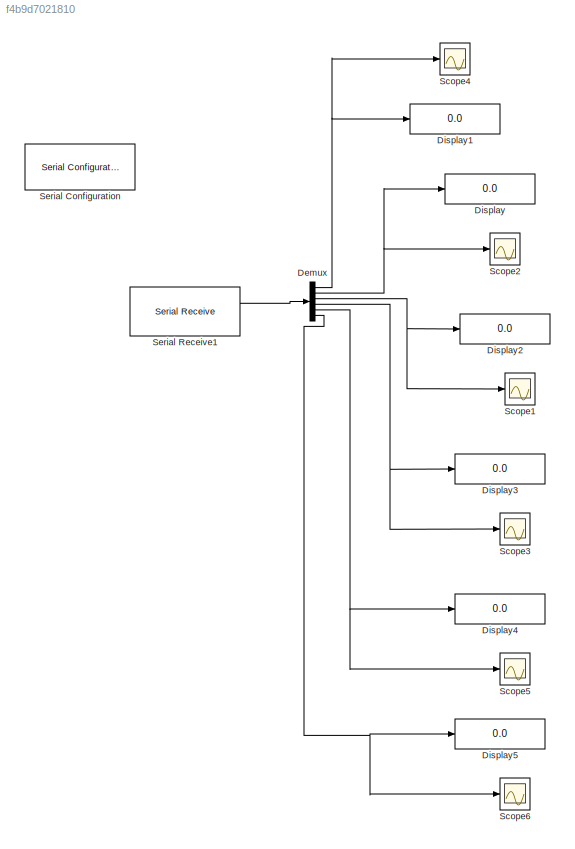
MODEL slx_f4b9d7021810
KIND model
CONFIG AbsTol = auto
CONFIG FixedStep = 0.0001
CONFIG MaxStep = auto
CONFIG MinStep = auto
CONFIG RelTol = 1e-3
CONFIG SampleTimeConstraint = Unconstrained
CONFIG Solver = ode3
CONFIG SolverMode = Auto
CONFIG SolverName = ode3
CONFIG StartTime = 0.0
CONFIG StopTime = inf
BLOCK [Demux] Demux
  DisplayOption = bar
  Outputs = 6
  Ports = [1, 6]
BLOCK [Display] Display
  Decimation = 1
  Ports = [1]
BLOCK [Display] Display1
  Decimation = 1
  Ports = [1]
BLOCK [Display] Display2
  Decimation = 1
  Ports = [1]
BLOCK [Display] Display3
  Decimation = 1
  Ports = [1]
BLOCK [Display] Display4
  Decimation = 1
  Ports = [1]
BLOCK [Display] Display5
  Decimation = 1
  Ports = [1]
BLOCK [Scope] Scope1
  Floating = off
  MaxDataPoints = 500000
  NumInputPorts = 1
  Ports = [1]
  SaveName = ScopeData1
  TimeRange = 0.2
  YMax = 11
  YMin = -1
BLOCK [Scope] Scope2
  Floating = off
  MaxDataPoints = 5000000
  NumInputPorts = 1
  Ports = [1]
  SaveName = ScopeData2
  TimeRange = 0.2
  YMax = 11
  YMin = -1
BLOCK [Scope] Scope3
  Floating = off
  MaxDataPoints = 5000000
  NumInputPorts = 1
  Ports = [1]
  TimeRange = 0.2
  YMax = 11
  YMin = -1
BLOCK [Scope] Scope4
  Floating = off
  MaxDataPoints = 500000
  NumInputPorts = 1
  Ports = [1]
  SaveName = ScopeData3
  TimeRange = 0.2
  YMax = 11
  YMin = -1
BLOCK [Scope] Scope5
  Floating = off
  MaxDataPoints = 5000000
  NumInputPorts = 1
  Ports = [1]
  SaveName = ScopeData4
  TimeRange = 0.2
  YMax = 11
  YMin = -1
BLOCK [Scope] Scope6
  Floating = off
  MaxDataPoints = 5000000
  NumInputPorts = 1
  Ports = [1]
  SaveName = ScopeData5
  TimeRange = 0.2
  YMax = 11
  YMin = -1
BLOCK [Reference] Serial Configuration  REF=instrumentlib/Serial Configuration
  BaudRate = 460800
  ByteOrder = BigEndian
  ComPort = COM3
  ComPortMenu = COM3
  DataBits = 8
  FlowControl = none
  ObjConstructor = serial('COM3');
  Parity = none
  Ports = []
  Priority = -200000
  SourceBlock = instrumentlib/Serial Configuration
  SourceType = Serial Configuration
  StopBits = 1
  Timeout = 10
BLOCK [Reference] Serial Receive1  REF=instrumentlib/Serial Receive
  ActionDataUnavailable = Output last received value
  ComPort = COM3
  ComPortMenu = COM3
  CustomValue = 0
  DataSize = [6  1]
  DataType = single
  EnableBlockingMode = off
  ObjConstructor = serial('COM3');
  Ports = [0, 2]
  SampleTime = 0.0001
  SourceBlock = instrumentlib/Serial Receive
  SourceType = Serial Receive
  Terminator = <none>
NET Demux:1 -> Display1:1, Scope4:1
NET Demux:2 -> Display:1, Scope2:1
NET Demux:3 -> Display2:1, Scope1:1
NET Demux:4 -> Display3:1, Scope3:1
NET Demux:5 -> Display4:1, Scope5:1
NET Demux:6 -> Display5:1, Scope6:1
LINE Serial Receive1:1 -> Demux:1
note: NET lines group one-source signal fan-out (src -> all destinations, sorted); 1:1 wires keep LINE
